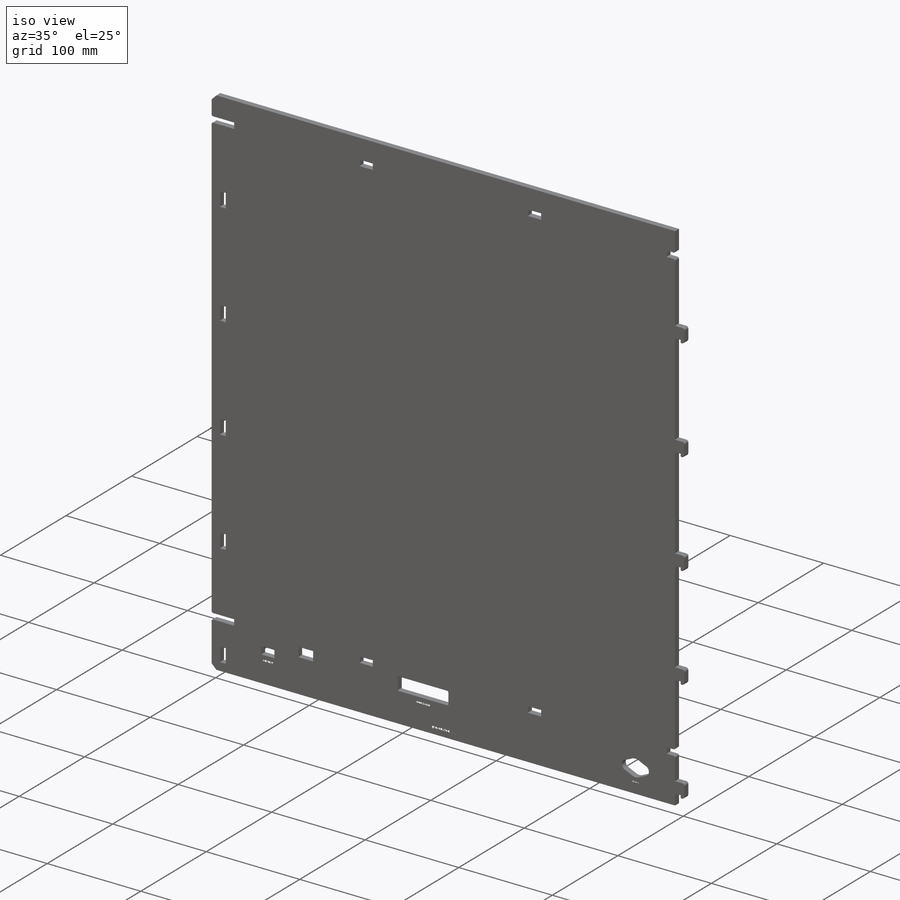
[diagram: iso view]
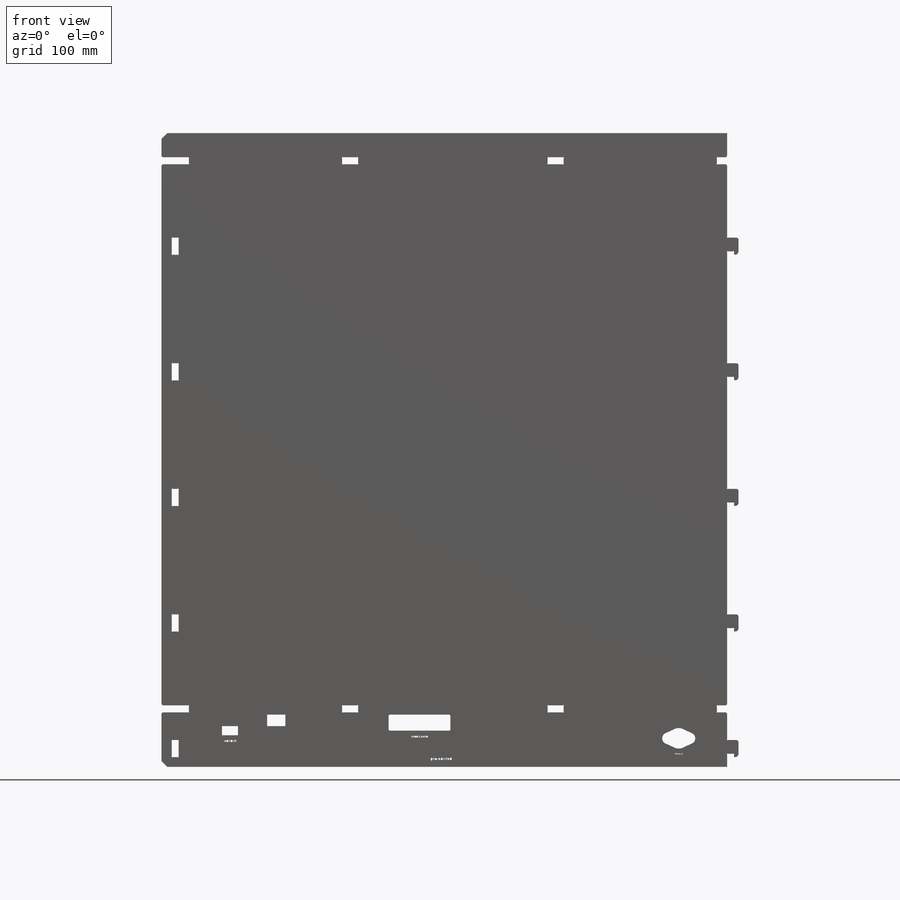
[diagram: front view]
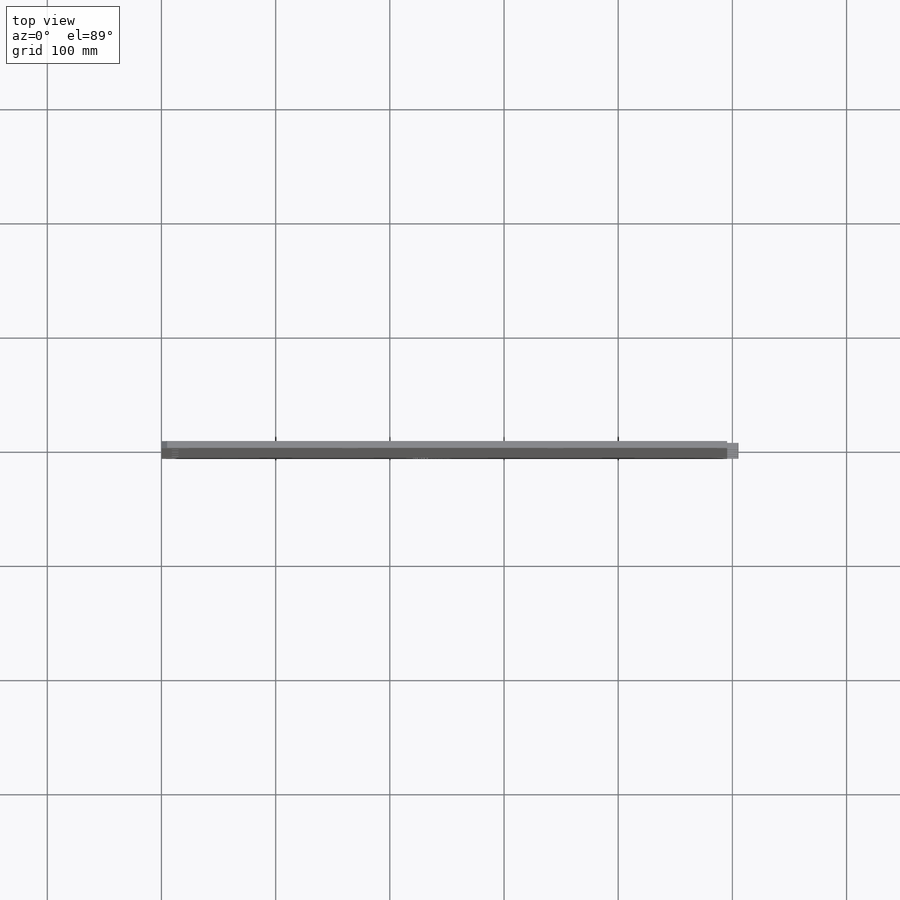
[diagram: top view]
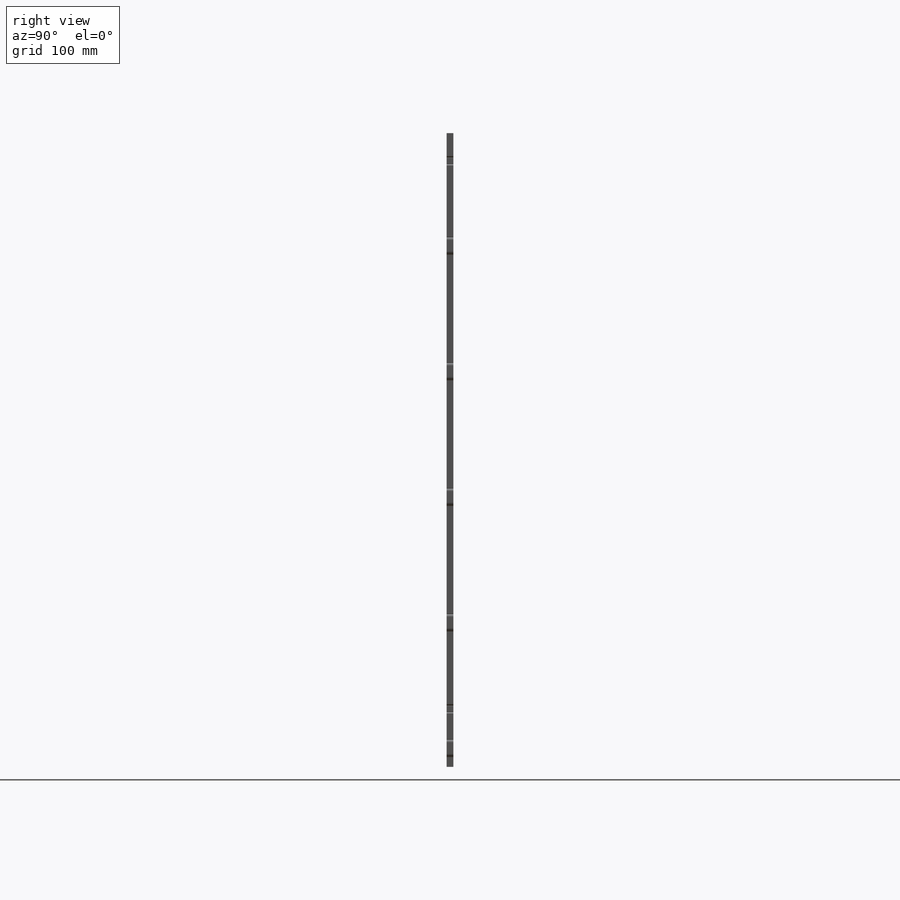
[diagram: right view]
SOLIDWORKS PART (.sldprt)
format: sldprt  version: not decoded by parser v0  size: 4,066,304 bytes
history: native  units: mm
features: sketch x22, cut_extrude x12, material x1 (+16 scaffold rows collapsed)
feature tree (51):
  scaffold x16  (default folders/planes/origin — collapsed)
  material  "Acrylic (Medium-high impact)"
  sketch  "Sketch6"  dims[c1.D1=~158.864848mm c2.D1=5.0mm c2.D2=75.0mm]
  cut_extrude  "Cut-Extrude3"  Depth=0.2mm
  sketch  "Sketch2"  dims[c1.D5=9.5mm c1.D6=11.5mm c1.D7=11.5mm c1.D8=12.5mm c1.D9=12.5mm c1.D10=12.5mm c1.D4=8.5mm c1.D11=8.5mm c2.D4=9.0mm c2.D10=9.0mm c2.D8=3.5mm c2.D15=1.0mm c2.D18=1.0mm c2.D3=18.0mm c2.D13=11.6mm c2.D14=11.6mm c3.D15=5.0mm c3.D1=54.0mm c3.D2=14.0mm c3.D3=54.2mm c3.D4=0.5mm c3.D6=6.6mm c3.D7=80.0mm c3.D9=25.0mm c3.D10=8.6mm c4.D4=25.7mm c4.D11=23.7mm c4.D3=4.0mm c4.D6=39.8mm c4.D7=3.0mm c4.D8=10.0mm c4.D9=25.0mm c5.D4=23.7mm c5.D10=25.8mm c5.D9=105.0mm c5.D7=3.5mm c6.D9=5.0mm c6.D11=24.8mm c6.D12=100.0mm c6.D4=14.0mm c6.D5=8.0mm c6.D7=0.5mm c6.D8=0.5mm c7.D9=0.5mm c7.D10=0.8mm c7.D11=0.5mm c7.D3=120.0mm c7.D6=45.0mm c7.D7=76.5mm c7.D8=33.7mm c8.D9=45.7mm c8.D10=35.7mm c8.D11=16.0mm c8.D12=10.0mm c8.D13=14.0mm c8.D14=23.0mm c8.D16=2.0mm c8.D17=50.0mm c8.D18=19.4mm c8.D8=45.7mm c8.D3=120.0mm c9.D17=50.0mm c9.D6=45.0mm c9.D7=100.5mm c9.D13=453.0mm c9.D14=25.0mm c9.D15=2.3mm c9.D16=19.0mm c10.D17=3.4mm c10.D19=226.0mm c11.D17=8.42mm c11.D20=10.88mm]
  cut_extrude  "Cut-Extrude2"  [1 undecoded]
  sketch  "Sketch10"
  sketch  "BLOCK 5"  dims[D1=3.0mm]
  cut_extrude  "Cut-Extrude5"  Depth=0.1mm
  sketch  "Sketch12"
  sketch  "Block2"
  sketch  "BLOCK 3"
  sketch  "BLOCK 4"  dims[c1.D1=1.5mm c1.D2=3.5mm c1.D3=15.0mm c2.D1=2.0mm]
  cut_extrude  "Cut-Extrude8"  Depth=0.1mm
  cut_extrude  "Cut-Extrude12"  [1 undecoded]
  sketch  "Sketch12<3>"  dims[D19=1.9mm]
  sketch  "Sketch13"
  sketch  "Block3"  dims[D1=3.0mm]
  cut_extrude  "Cut-Extrude13"  Depth=0.1mm
  sketch  "Sketch15"
  sketch  "Block4"  dims[c1.D1=3.0mm c1.D2=3.0mm c2.D1=2.0mm]
  cut_extrude  "Cut-Extrude14"  Depth=0.1mm
  sketch  "Sketch19"
  sketch  "OnOff"  dims[c1.D1=5.0mm c1.D2=0.3mm c1.D3=1.5mm c1.D4=1.5mm c2.D4=60.0deg]
  cut_extrude  "Cut-Extrude15"  Depth=0.1mm
  sketch  "Sketch20"  dims[D1=6.0mm]
  cut_extrude  "Cut-Extrude16"  Depth=0.5mm
  sketch  "Sketch21"
  sketch  "Block5"  dims[D1=6.0mm]
  cut_extrude  "Cut-Extrude17"  Depth=0.5mm
  sketch  "Sketch22"
  sketch  "Block6"  dims[D1=14.0mm]
  cut_extrude  "Cut-Extrude18"  Depth=0.2mm
  sketch  "Sketch23"
  sketch  "Block7"  dims[D1=7.0mm D2=6.0mm]
  cut_extrude  "Cut-Extrude19"  Depth=0.2mm
decode coverage: 22 of 34 modeling features carry decoded parameters
note: ~ marks probable driven/reference dimensions
note: 2 parameter values undecoded
note: suppression state not decoded; provenance and decode notes live in map.json
